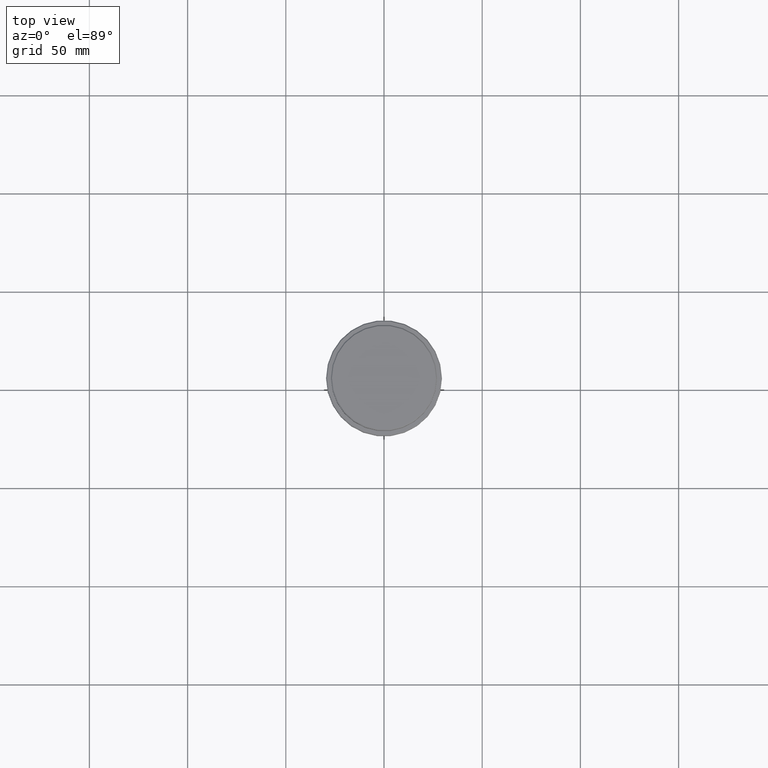
[diagram: clean part render]
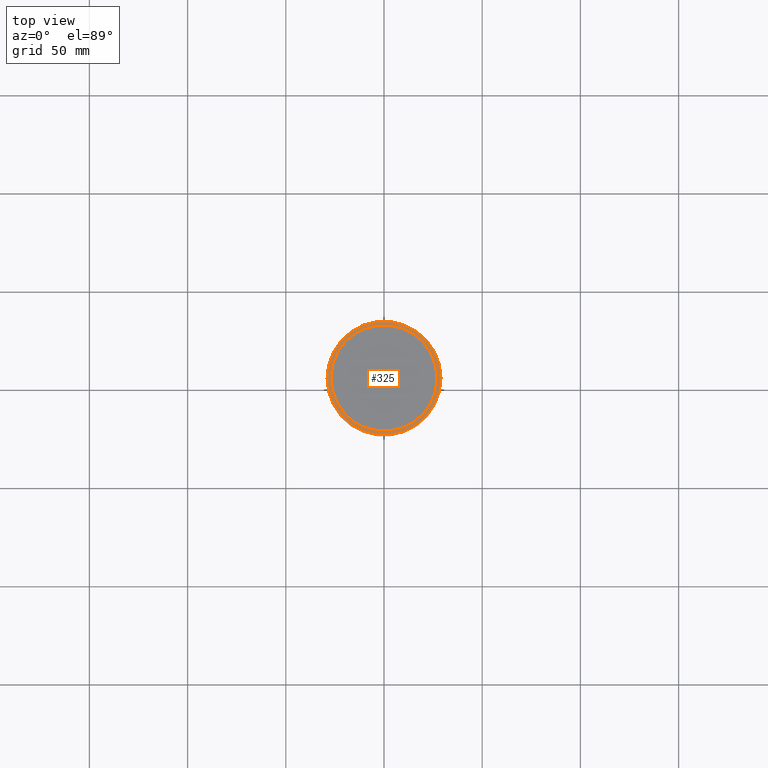
[diagram: same view with one face highlighted and labeled with its STEP entity id]
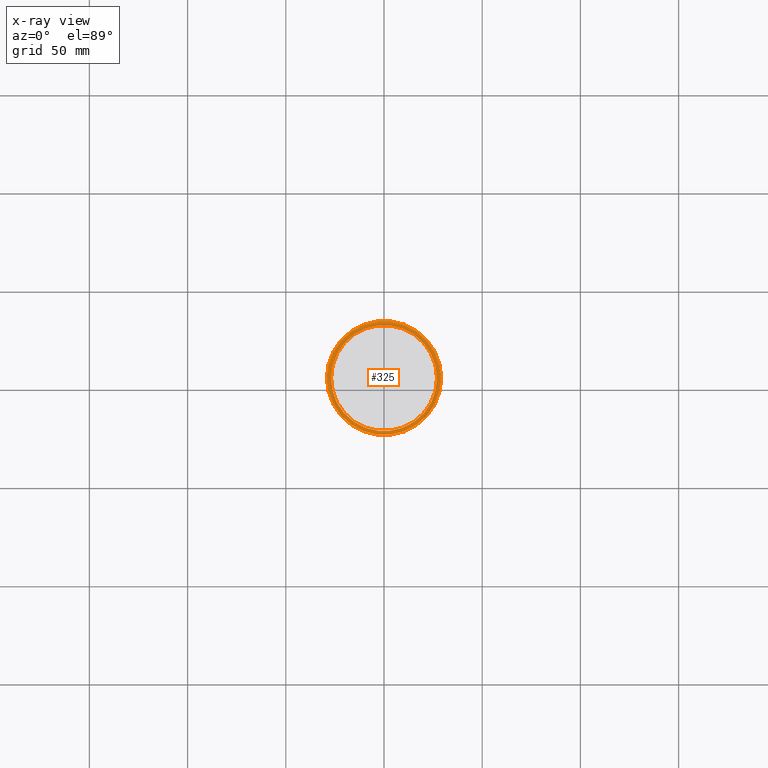
[diagram: x-ray of the same camera — body ghosted, the highlighted face saturated]
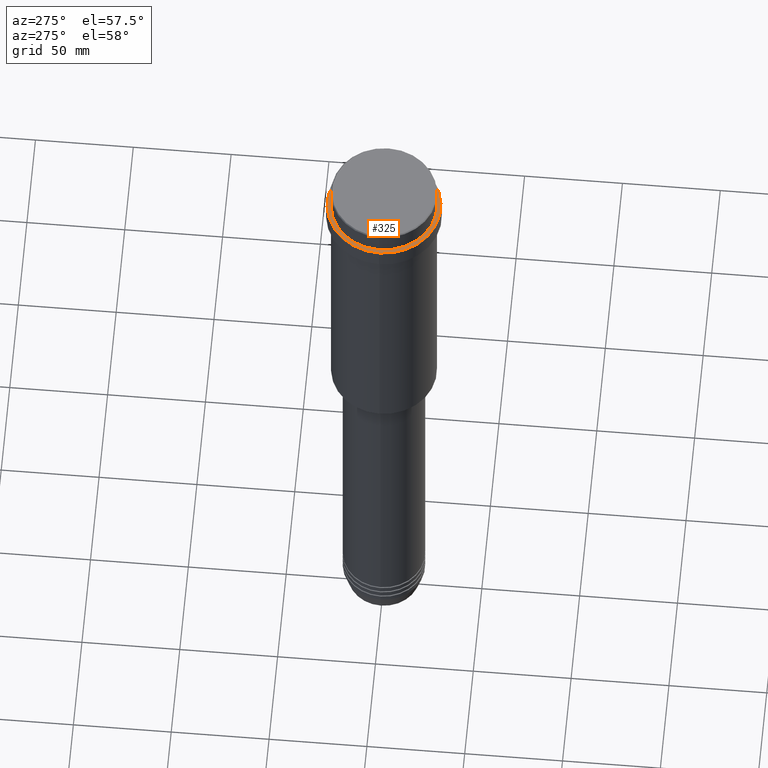
[diagram: same view with one face highlighted and labeled with its STEP entity id]
A machine part, top view. The second image highlights one B-rep face of the part: STEP entity #325.
The next image is the same camera in x-ray: the body ghosted, the highlighted face saturated — about 0% of this face is hidden behind the body in this view.
A second angle (auxiliary view) of the same face is appended — the face is thin or edge-on in the first view.
In plain terms, the highlighted planar face has unit normal (0, -0, 1).
Its self-contained STEP definition (entity closure, byte-faithful):
#31 = EDGE_LOOP ( 'NONE', ( #953, #879 ) ) ;
#162 = CARTESIAN_POINT ( 'NONE',  ( -28.99999999999991473, 0.000000000000000000, -12.00000000000000355 ) ) ;
#242 = DIRECTION ( 'NONE',  ( 0.000000000000000000, 0.000000000000000000, -1.000000000000000000 ) ) ;
#291 = EDGE_CURVE ( 'NONE', #573, #380, #1261, .T. ) ;
#302 = CIRCLE ( 'NONE', #728, 28.99999999999991473 ) ;
#322 = CIRCLE ( 'NONE', #847, 26.99999999999999645 ) ;
#325 = ADVANCED_FACE ( 'NONE', ( #808, #712 ), #911, .T. ) ;
#350 = VERTEX_POINT ( 'NONE', #162 ) ;
#380 = VERTEX_POINT ( 'NONE', #477 ) ;
#438 = CARTESIAN_POINT ( 'NONE',  ( 0.000000000000000000, 0.000000000000000000, -12.00000000000000355 ) ) ;
#477 = CARTESIAN_POINT ( 'NONE',  ( 26.99999999999999645, 0.000000000000000000, -12.00000000000000355 ) ) ;
#564 = DIRECTION ( 'NONE',  ( 1.000000000000000000, 0.000000000000000000, 0.000000000000000000 ) ) ;
#573 = VERTEX_POINT ( 'NONE', #1002 ) ;
#598 = DIRECTION ( 'NONE',  ( 1.000000000000000000, 0.000000000000000000, 0.000000000000000000 ) ) ;
#637 = ORIENTED_EDGE ( 'NONE', *, *, #740, .T. ) ;
#659 = DIRECTION ( 'NONE',  ( -0.000000000000000000, -0.000000000000000000, 1.000000000000000000 ) ) ;
#683 = DIRECTION ( 'NONE',  ( 1.000000000000000000, 0.000000000000000000, 0.000000000000000000 ) ) ;
#684 = CARTESIAN_POINT ( 'NONE',  ( 28.99999999999991473, 3.582091887506003084E-15, -12.00000000000000355 ) ) ;
#712 = FACE_BOUND ( 'NONE', #31, .T. ) ;
#728 = AXIS2_PLACEMENT_3D ( 'NONE', #1000, #1236, #683 ) ;
#740 = EDGE_CURVE ( 'NONE', #815, #350, #890, .T. ) ;
#762 = AXIS2_PLACEMENT_3D ( 'NONE', #438, #659, #1307 ) ;
#797 = CARTESIAN_POINT ( 'NONE',  ( 0.000000000000000000, 26.49999999999999645, -12.00000000000000355 ) ) ;
#808 = FACE_OUTER_BOUND ( 'NONE', #1187, .T. ) ;
#815 = VERTEX_POINT ( 'NONE', #684 ) ;
#847 = AXIS2_PLACEMENT_3D ( 'NONE', #1228, #242, #564 ) ;
#879 = ORIENTED_EDGE ( 'NONE', *, *, #291, .T. ) ;
#889 = AXIS2_PLACEMENT_3D ( 'NONE', #1244, #1137, #598 ) ;
#890 = CIRCLE ( 'NONE', #762, 28.99999999999991473 ) ;
#911 = PLANE ( 'NONE',  #1183 ) ;
#921 = DIRECTION ( 'NONE',  ( 0.000000000000000000, -0.000000000000000000, 1.000000000000000000 ) ) ;
#953 = ORIENTED_EDGE ( 'NONE', *, *, #1227, .T. ) ;
#1000 = CARTESIAN_POINT ( 'NONE',  ( 0.000000000000000000, 0.000000000000000000, -12.00000000000000355 ) ) ;
#1002 = CARTESIAN_POINT ( 'NONE',  ( -26.99999999999999645, 3.306546357697853339E-15, -12.00000000000000355 ) ) ;
#1025 = ORIENTED_EDGE ( 'NONE', *, *, #1282, .T. ) ;
#1137 = DIRECTION ( 'NONE',  ( 0.000000000000000000, 0.000000000000000000, -1.000000000000000000 ) ) ;
#1183 = AXIS2_PLACEMENT_3D ( 'NONE', #797, #921, #1346 ) ;
#1187 = EDGE_LOOP ( 'NONE', ( #1025, #637 ) ) ;
#1227 = EDGE_CURVE ( 'NONE', #380, #573, #322, .T. ) ;
#1228 = CARTESIAN_POINT ( 'NONE',  ( 0.000000000000000000, 0.000000000000000000, -12.00000000000000355 ) ) ;
#1236 = DIRECTION ( 'NONE',  ( -0.000000000000000000, -0.000000000000000000, 1.000000000000000000 ) ) ;
#1244 = CARTESIAN_POINT ( 'NONE',  ( 0.000000000000000000, 0.000000000000000000, -12.00000000000000355 ) ) ;
#1261 = CIRCLE ( 'NONE', #889, 26.99999999999999645 ) ;
#1282 = EDGE_CURVE ( 'NONE', #350, #815, #302, .T. ) ;
#1307 = DIRECTION ( 'NONE',  ( 1.000000000000000000, 0.000000000000000000, 0.000000000000000000 ) ) ;
#1346 = DIRECTION ( 'NONE',  ( 1.000000000000000000, 0.000000000000000000, 0.000000000000000000 ) ) ;